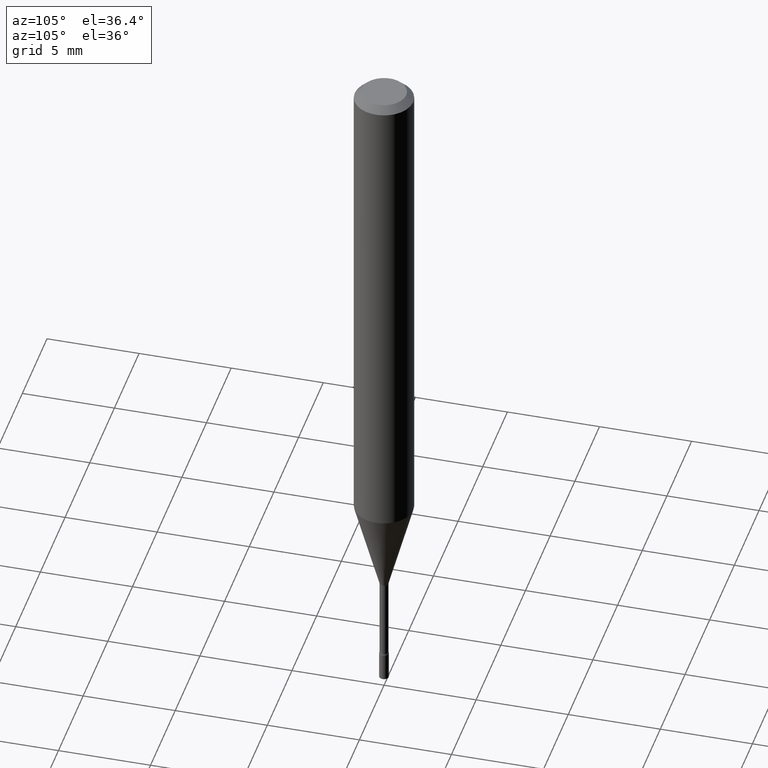
[diagram: clean part render]
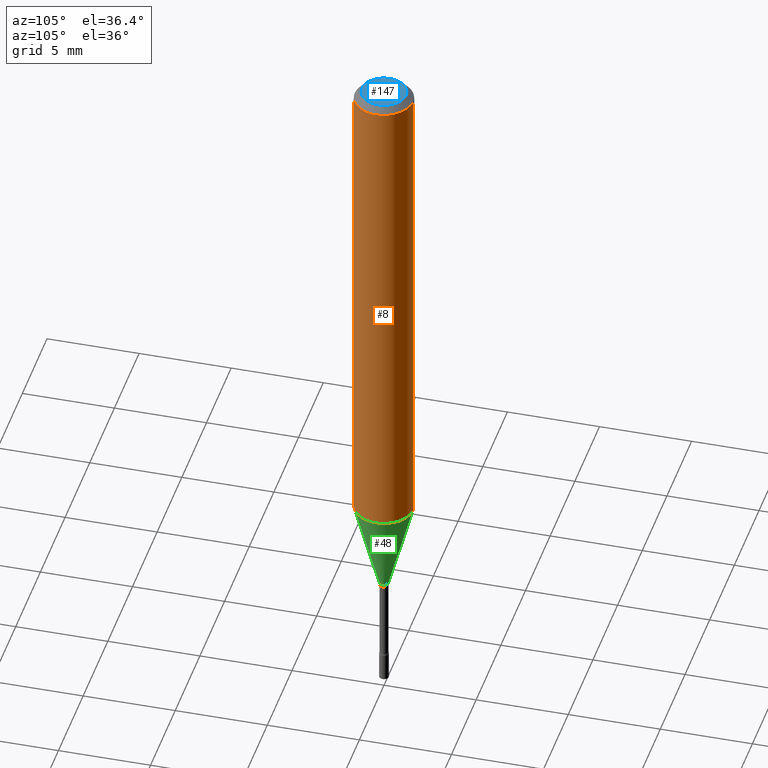
[diagram: same view with three faces highlighted in distinct colors, each labeled with its STEP entity id]
A machine part, auxiliary view with three faces highlighted in distinct colors.
Their STEP definitions:

[orange] entity #8 — the highlighted cylindrical surface (edge-blend (fillet) strip) has radius 1.5875 mm, axis along (-0, 0, 1).
#8 = ADVANCED_FACE ( 'NONE', ( #90 ), #492, .T. ) ;
#25 = CARTESIAN_POINT ( 'NONE',  ( -4.364351673553912750E-16, -0.06250000000000005551, -0.01499999999999981209 ) ) ;
#31 = DIRECTION ( 'NONE',  ( -6.982962677686265922E-15, -1.000000000000000000, 4.370956789862821150E-15 ) ) ;
#39 = CARTESIAN_POINT ( 'NONE',  ( 3.668015049916564189E-31, -5.237491463179258781E-17, -0.01500000000000003067 ) ) ;
#75 = CARTESIAN_POINT ( 'NONE',  ( 2.596534305995666904E-29, -3.707543746804889699E-15, -1.061828102118093087 ) ) ;
#81 = ORIENTED_EDGE ( 'NONE', *, *, #301, .F. ) ;
#90 = FACE_OUTER_BOUND ( 'NONE', #144, .T. ) ;
#94 = CARTESIAN_POINT ( 'NONE',  ( 4.440892098500625669E-16, 0.06250000000000000000, -2.182288109658019531E-16 ) ) ;
#102 = CIRCLE ( 'NONE', #430, 0.06250000000000000000 ) ;
#104 = EDGE_CURVE ( 'NONE', #224, #495, #102, .T. ) ;
#144 = EDGE_LOOP ( 'NONE', ( #364, #310, #428, #81 ) ) ;
#152 = CARTESIAN_POINT ( 'NONE',  ( -4.364351673553657849E-16, -0.06250000000000371925, -1.061828102118092865 ) ) ;
#165 = VECTOR ( 'NONE', #221, 39.37007874015748143 ) ;
#173 = DIRECTION ( 'NONE',  ( -6.982962677686265922E-15, -1.000000000000000000, 3.491660975452831250E-15 ) ) ;
#193 = DIRECTION ( 'NONE',  ( -2.445343366611038169E-29, 3.491660975452831644E-15, 1.000000000000000000 ) ) ;
#194 = DIRECTION ( 'NONE',  ( -2.445343366611038169E-29, 3.491660975452831644E-15, 1.000000000000000000 ) ) ;
#197 = CARTESIAN_POINT ( 'NONE',  ( 4.440892098500887472E-16, 0.06249999999999995837, -0.01500000000000024751 ) ) ;
#214 = DIRECTION ( 'NONE',  ( -2.445343366611038169E-29, 3.491660975452831644E-15, 1.000000000000000000 ) ) ;
#221 = DIRECTION ( 'NONE',  ( -2.445343366611038169E-29, 3.491660975452831250E-15, 1.000000000000000000 ) ) ;
#224 = VERTEX_POINT ( 'NONE', #25 ) ;
#231 = CARTESIAN_POINT ( 'NONE',  ( -4.364351673553916201E-16, -0.06250000000000000000, 2.182288109658019531E-16 ) ) ;
#241 = LINE ( 'NONE', #231, #254 ) ;
#252 = EDGE_CURVE ( 'NONE', #405, #495, #271, .T. ) ;
#254 = VECTOR ( 'NONE', #510, 39.37007874015748143 ) ;
#271 = LINE ( 'NONE', #94, #165 ) ;
#291 = AXIS2_PLACEMENT_3D ( 'NONE', #328, #214, #173 ) ;
#301 = EDGE_CURVE ( 'NONE', #443, #224, #241, .T. ) ;
#310 = ORIENTED_EDGE ( 'NONE', *, *, #252, .T. ) ;
#328 = CARTESIAN_POINT ( 'NONE',  ( 0.000000000000000000, 0.000000000000000000, 0.000000000000000000 ) ) ;
#353 = CIRCLE ( 'NONE', #472, 0.06250000000000000000 ) ;
#358 = DIRECTION ( 'NONE',  ( -6.982962677686265922E-15, -1.000000000000000000, 3.483106191921935554E-15 ) ) ;
#364 = ORIENTED_EDGE ( 'NONE', *, *, #467, .T. ) ;
#398 = CARTESIAN_POINT ( 'NONE',  ( 4.440892098500884514E-16, 0.06249999999999629463, -1.061828102118093309 ) ) ;
#405 = VERTEX_POINT ( 'NONE', #398 ) ;
#428 = ORIENTED_EDGE ( 'NONE', *, *, #104, .F. ) ;
#430 = AXIS2_PLACEMENT_3D ( 'NONE', #39, #193, #358 ) ;
#443 = VERTEX_POINT ( 'NONE', #152 ) ;
#467 = EDGE_CURVE ( 'NONE', #443, #405, #353, .T. ) ;
#472 = AXIS2_PLACEMENT_3D ( 'NONE', #75, #194, #31 ) ;
#492 = CYLINDRICAL_SURFACE ( 'NONE', #291, 0.06250000000000000000 ) ;
#495 = VERTEX_POINT ( 'NONE', #197 ) ;
#510 = DIRECTION ( 'NONE',  ( -2.445343366611038169E-29, 3.491660975452831250E-15, 1.000000000000000000 ) ) ;

[blue] entity #147 — the highlighted planar face has unit normal (0, -0, -1).
#71 = CARTESIAN_POINT ( 'NONE',  ( 7.068357481363179518E-46, -1.009277810029187006E-31, -2.890537818890891102E-17 ) ) ;
#79 = DIRECTION ( 'NONE',  ( -6.982962677686266711E-15, -1.000000000000000000, 3.491660975452831644E-15 ) ) ;
#95 = PLANE ( 'NONE',  #302 ) ;
#97 = AXIS2_PLACEMENT_3D ( 'NONE', #445, #441, #79 ) ;
#115 = ORIENTED_EDGE ( 'NONE', *, *, #325, .T. ) ;
#142 = CARTESIAN_POINT ( 'NONE',  ( -3.773273898774340269E-16, -0.04749999999999999362, 1.369485181451006022E-16 ) ) ;
#147 = ADVANCED_FACE ( 'NONE', ( #311 ), #95, .F. ) ;
#181 = VERTEX_POINT ( 'NONE', #142 ) ;
#234 = AXIS2_PLACEMENT_3D ( 'NONE', #71, #316, #320 ) ;
#268 = EDGE_LOOP ( 'NONE', ( #346, #115 ) ) ;
#298 = DIRECTION ( 'NONE',  ( 6.982962677686265922E-15, 1.000000000000000000, -3.491660975452831250E-15 ) ) ;
#302 = AXIS2_PLACEMENT_3D ( 'NONE', #505, #306, #298 ) ;
#306 = DIRECTION ( 'NONE',  ( 2.445343366611038169E-29, -3.491660975452831250E-15, -1.000000000000000000 ) ) ;
#311 = FACE_OUTER_BOUND ( 'NONE', #268, .T. ) ;
#312 = CIRCLE ( 'NONE', #97, 0.04749999999999999362 ) ;
#316 = DIRECTION ( 'NONE',  ( -2.445343366611038169E-29, 3.491660975452831644E-15, 1.000000000000000000 ) ) ;
#320 = DIRECTION ( 'NONE',  ( -6.982962677686266711E-15, -1.000000000000000000, 3.491660975452831644E-15 ) ) ;
#325 = EDGE_CURVE ( 'NONE', #181, #519, #465, .T. ) ;
#346 = ORIENTED_EDGE ( 'NONE', *, *, #461, .T. ) ;
#362 = CARTESIAN_POINT ( 'NONE',  ( 3.840629472727447874E-16, 0.04749999999999999362, -1.947592745229183872E-16 ) ) ;
#441 = DIRECTION ( 'NONE',  ( -2.445343366611038169E-29, 3.491660975452831644E-15, 1.000000000000000000 ) ) ;
#445 = CARTESIAN_POINT ( 'NONE',  ( 7.068357481363179518E-46, -1.009277810029187006E-31, -2.890537818890891102E-17 ) ) ;
#461 = EDGE_CURVE ( 'NONE', #519, #181, #312, .T. ) ;
#465 = CIRCLE ( 'NONE', #234, 0.04749999999999999362 ) ;
#505 = CARTESIAN_POINT ( 'NONE',  ( 3.316907271900976096E-16, 0.04749999999999999362, -1.803065854284639718E-16 ) ) ;
#519 = VERTEX_POINT ( 'NONE', #362 ) ;

[green] entity #48 — the highlighted conical surface has half-angle 15 deg.
#7 = CARTESIAN_POINT ( 'NONE',  ( 3.076468153828594531E-29, -4.392832492000444341E-15, -1.258092501787273276 ) ) ;
#30 = VERTEX_POINT ( 'NONE', #86 ) ;
#31 = DIRECTION ( 'NONE',  ( -6.982962677686265922E-15, -1.000000000000000000, 4.370956789862821150E-15 ) ) ;
#37 = ORIENTED_EDGE ( 'NONE', *, *, #467, .F. ) ;
#48 = ADVANCED_FACE ( 'NONE', ( #211 ), #452, .T. ) ;
#53 = AXIS2_PLACEMENT_3D ( 'NONE', #7, #409, #327 ) ;
#56 = VECTOR ( 'NONE', #283, 39.37007874015748854 ) ;
#72 = ORIENTED_EDGE ( 'NONE', *, *, #232, .T. ) ;
#75 = CARTESIAN_POINT ( 'NONE',  ( 2.596534305995666904E-29, -3.707543746804889699E-15, -1.061828102118093087 ) ) ;
#86 = CARTESIAN_POINT ( 'NONE',  ( 2.572559502513342919E-16, 0.009911112605659593358, -1.258092501787273276 ) ) ;
#89 = DIRECTION ( 'NONE',  ( 1.839019923739596371E-15, 0.2588190451025244032, 0.9659258262890673130 ) ) ;
#109 = CARTESIAN_POINT ( 'NONE',  ( -6.920892941966671205E-17, -0.009911112605668377998, -1.258092501787273276 ) ) ;
#135 = VECTOR ( 'NONE', #89, 39.37007874015748143 ) ;
#141 = EDGE_CURVE ( 'NONE', #30, #405, #469, .T. ) ;
#152 = CARTESIAN_POINT ( 'NONE',  ( -4.364351673553657849E-16, -0.06250000000000371925, -1.061828102118092865 ) ) ;
#177 = DIRECTION ( 'NONE',  ( -6.982962677686265922E-15, -1.000000000000000000, 0.000000000000000000 ) ) ;
#194 = DIRECTION ( 'NONE',  ( -2.445343366611038169E-29, 3.491660975452831644E-15, 1.000000000000000000 ) ) ;
#211 = FACE_OUTER_BOUND ( 'NONE', #272, .T. ) ;
#232 = EDGE_CURVE ( 'NONE', #258, #30, #455, .T. ) ;
#257 = ORIENTED_EDGE ( 'NONE', *, *, #141, .T. ) ;
#258 = VERTEX_POINT ( 'NONE', #436 ) ;
#272 = EDGE_LOOP ( 'NONE', ( #72, #257, #37, #352 ) ) ;
#280 = LINE ( 'NONE', #109, #56 ) ;
#283 = DIRECTION ( 'NONE',  ( -1.807323732225326195E-15, -0.2588190451025176309, 0.9659258262890690894 ) ) ;
#327 = DIRECTION ( 'NONE',  ( -6.982962677686265922E-15, -1.000000000000000000, 0.000000000000000000 ) ) ;
#352 = ORIENTED_EDGE ( 'NONE', *, *, #458, .F. ) ;
#353 = CIRCLE ( 'NONE', #472, 0.06250000000000000000 ) ;
#386 = DIRECTION ( 'NONE',  ( -2.445343366611038169E-29, 3.491660975452831644E-15, 1.000000000000000000 ) ) ;
#388 = CARTESIAN_POINT ( 'NONE',  ( 3.076468153828594531E-29, -4.392832492000444341E-15, -1.258092501787273276 ) ) ;
#398 = CARTESIAN_POINT ( 'NONE',  ( 4.440892098500884514E-16, 0.06249999999999629463, -1.061828102118093309 ) ) ;
#405 = VERTEX_POINT ( 'NONE', #398 ) ;
#409 = DIRECTION ( 'NONE',  ( -2.445343366611038169E-29, 3.491660975452831644E-15, 1.000000000000000000 ) ) ;
#433 = CARTESIAN_POINT ( 'NONE',  ( 7.042269065257978733E-17, 0.009911112605659593358, -1.258092501787273276 ) ) ;
#436 = CARTESIAN_POINT ( 'NONE',  ( -6.920892941966671205E-17, -0.009911112605668377998, -1.258092501787273276 ) ) ;
#443 = VERTEX_POINT ( 'NONE', #152 ) ;
#452 = CONICAL_SURFACE ( 'NONE', #53, 0.009911112605663985678, 0.2617993877991496854 ) ;
#455 = CIRCLE ( 'NONE', #499, 0.009911112605663985678 ) ;
#458 = EDGE_CURVE ( 'NONE', #258, #443, #280, .T. ) ;
#467 = EDGE_CURVE ( 'NONE', #443, #405, #353, .T. ) ;
#469 = LINE ( 'NONE', #433, #135 ) ;
#472 = AXIS2_PLACEMENT_3D ( 'NONE', #75, #194, #31 ) ;
#499 = AXIS2_PLACEMENT_3D ( 'NONE', #388, #386, #177 ) ;